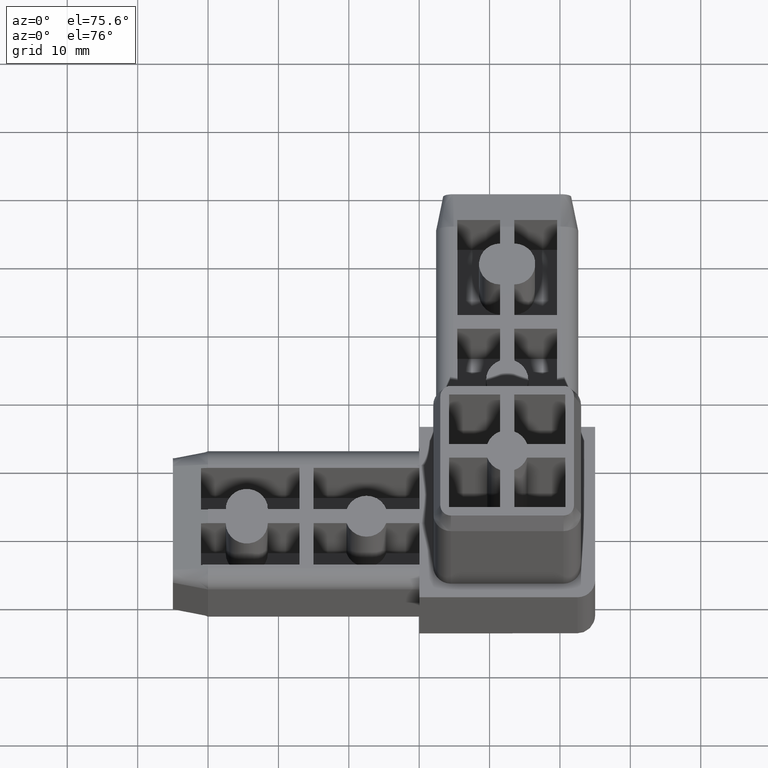
[diagram: clean part render]
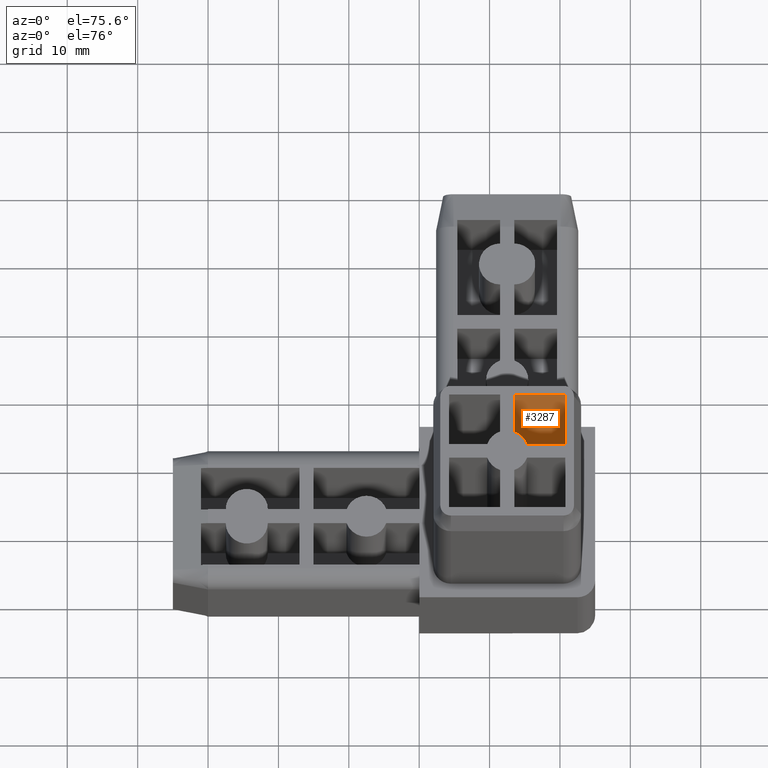
[diagram: same view with one face highlighted and labeled with its STEP entity id]
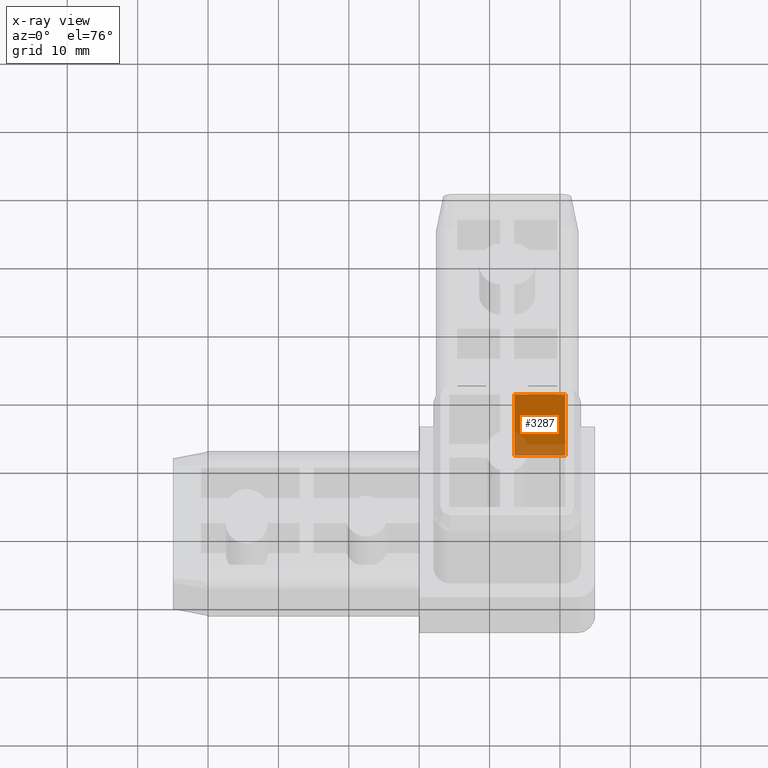
[diagram: x-ray of the same camera — body ghosted, the highlighted face saturated]
A machine part, auxiliary view. The second image highlights one B-rep face of the part: STEP entity #3287.
The next image is the same camera in x-ray: the body ghosted, the highlighted face saturated — about 22% of this face is hidden behind the body in this view.
In plain terms, the highlighted planar face has unit normal (0, -1, 0).
Its self-contained STEP definition (entity closure, byte-faithful):
#1490=CARTESIAN_POINT('',(20.749999999989996,-4.250000000000000,35.000000000000028));
#1491=VERTEX_POINT('',#1490);
#1515=CARTESIAN_POINT('',(13.500000000000000,-4.250000000000000,35.000000000000028));
#1516=VERTEX_POINT('',#1515);
#1523=CARTESIAN_POINT('',(20.749999999990063,-4.250000000000000,35.000000000000028));
#1524=DIRECTION('',(-1.0,0.0,0.0));
#1525=VECTOR('',#1524,7.249999999990063);
#1526=LINE('',#1523,#1525);
#1527=EDGE_CURVE('',#1491,#1516,#1526,.T.);
#3247=CARTESIAN_POINT('',(20.749999999989996,-4.250000000000000,2.842171E-014));
#3248=VERTEX_POINT('',#3247);
#3249=CARTESIAN_POINT('',(20.749999999989996,-4.250000000000000,35.000000000000028));
#3250=DIRECTION('',(0.0,0.0,-1.0));
#3251=VECTOR('',#3250,35.0);
#3252=LINE('',#3249,#3251);
#3253=EDGE_CURVE('',#1491,#3248,#3252,.T.);
#3264=CARTESIAN_POINT('',(20.749999999989996,-4.250000000000000,35.000000000000028));
#3265=DIRECTION('',(0.0,-1.0,0.0));
#3266=DIRECTION('',(-1.0,0.0,0.0));
#3267=AXIS2_PLACEMENT_3D('',#3264,#3265,#3266);
#3268=PLANE('',#3267);
#3269=ORIENTED_EDGE('',*,*,#3253,.F.);
#3270=ORIENTED_EDGE('',*,*,#1527,.T.);
#3271=CARTESIAN_POINT('',(13.500000000000000,-4.250000000000000,2.842171E-014));
#3272=VERTEX_POINT('',#3271);
#3273=CARTESIAN_POINT('',(13.500000000000000,-4.250000000000000,35.000000000000028));
#3274=DIRECTION('',(0.0,0.0,-1.0));
#3275=VECTOR('',#3274,35.0);
#3276=LINE('',#3273,#3275);
#3277=EDGE_CURVE('',#1516,#3272,#3276,.T.);
#3278=ORIENTED_EDGE('',*,*,#3277,.T.);
#3279=CARTESIAN_POINT('',(20.749999999990063,-4.250000000000000,2.842171E-014));
#3280=DIRECTION('',(-1.0,0.0,0.0));
#3281=VECTOR('',#3280,7.249999999990063);
#3282=LINE('',#3279,#3281);
#3283=EDGE_CURVE('',#3248,#3272,#3282,.T.);
#3284=ORIENTED_EDGE('',*,*,#3283,.F.);
#3285=EDGE_LOOP('',(#3269,#3270,#3278,#3284));
#3286=FACE_OUTER_BOUND('',#3285,.T.);
#3287=ADVANCED_FACE('',(#3286),#3268,.T.);